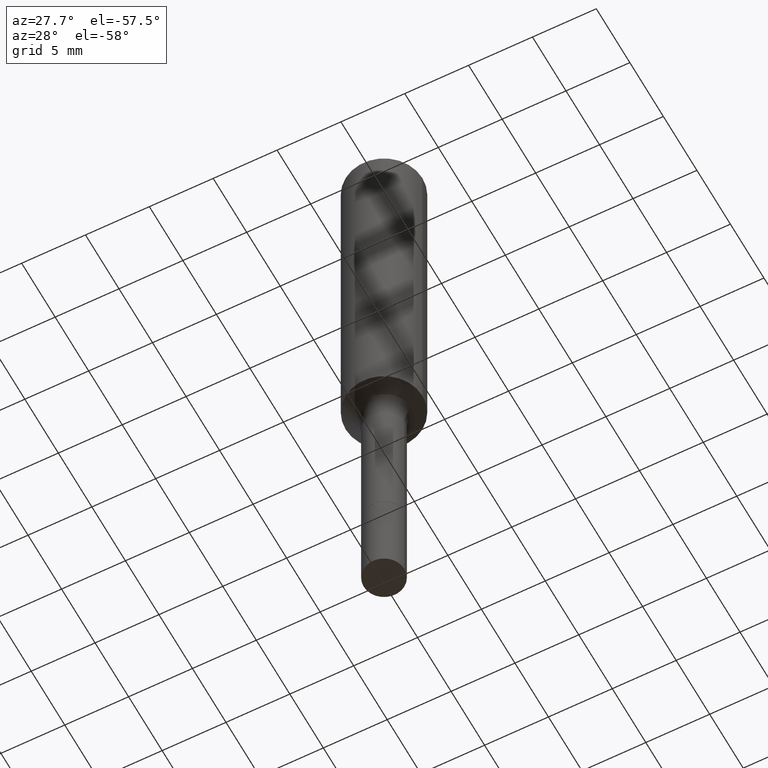
[diagram: clean part render]
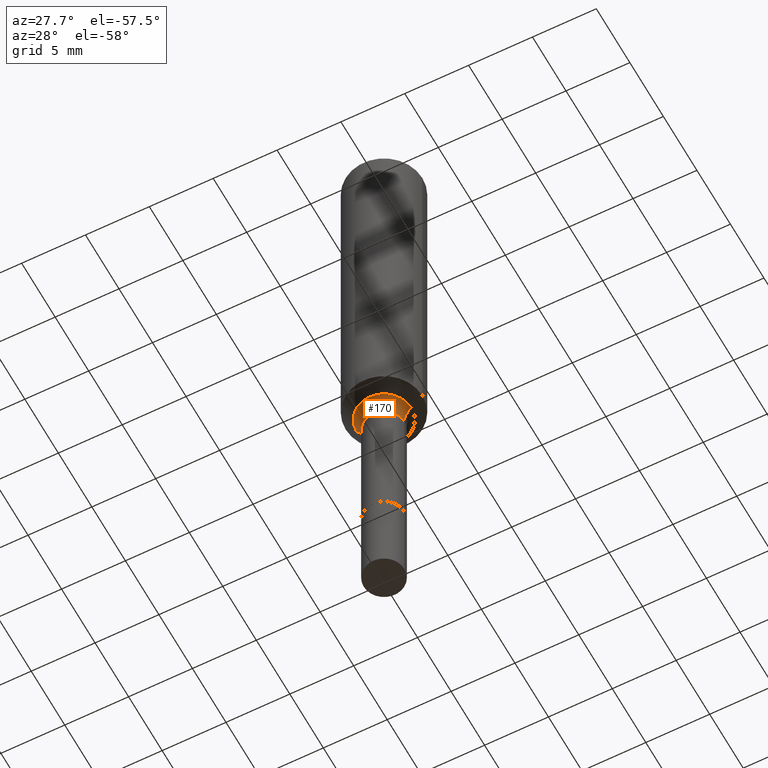
[diagram: same view with one face highlighted and labeled with its STEP entity id]
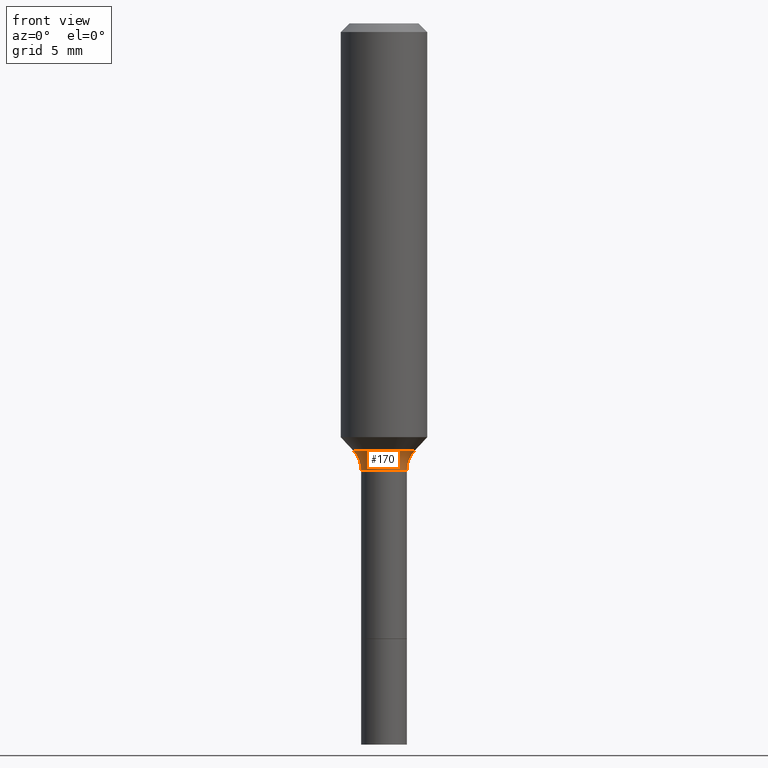
[diagram: same view with one face highlighted and labeled with its STEP entity id]
A machine part, auxiliary view. The second image highlights one B-rep face of the part: STEP entity #170.
A second angle (front view) of the same face is appended — the face is thin or edge-on in the first view.
In plain terms, the highlighted toroidal blend (fillet) surface has major radius 3.6195 mm and minor (blend) radius 2.032 mm.
Its self-contained STEP definition (entity closure, byte-faithful):
#2 = VERTEX_POINT ( 'NONE', #5 ) ;
#5 = CARTESIAN_POINT ( 'NONE',  ( -0.06249999999999993755, -4.617685861137787747E-15, -1.220499999999999918 ) ) ;
#11 = CIRCLE ( 'NONE', #372, 0.07999999999999993228 ) ;
#19 = FACE_OUTER_BOUND ( 'NONE', #62, .T. ) ;
#31 = DIRECTION ( 'NONE',  ( 1.000000000000000000, -6.982962677686268288E-15, 0.000000000000000000 ) ) ;
#32 = VERTEX_POINT ( 'NONE', #206 ) ;
#49 = CARTESIAN_POINT ( 'NONE',  ( -0.1424999999999999600, -3.248829575599916941E-15, -1.220499999999999918 ) ) ;
#51 = CIRCLE ( 'NONE', #109, 0.08399170387046661634 ) ;
#55 = DIRECTION ( 'NONE',  ( 1.000000000000000000, -6.982962677686269866E-15, 0.000000000000000000 ) ) ;
#56 = CIRCLE ( 'NONE', #252, 0.06249999999999993755 ) ;
#62 = EDGE_LOOP ( 'NONE', ( #357, #462, #302, #417 ) ) ;
#107 = VERTEX_POINT ( 'NONE', #363 ) ;
#109 = AXIS2_PLACEMENT_3D ( 'NONE', #352, #156, #31 ) ;
#120 = AXIS2_PLACEMENT_3D ( 'NONE', #49, #497, #490 ) ;
#133 = DIRECTION ( 'NONE',  ( 1.000000000000000000, -6.982962677686269077E-15, 4.883557194083114022E-29 ) ) ;
#138 = DIRECTION ( 'NONE',  ( -2.445468806185136597E-29, 3.491481338843145583E-15, 1.000000000000000000 ) ) ;
#156 = DIRECTION ( 'NONE',  ( -2.445468806185136597E-29, 3.491481338843145583E-15, 1.000000000000000000 ) ) ;
#170 = ADVANCED_FACE ( 'NONE', ( #19 ), #221, .F. ) ;
#206 = CARTESIAN_POINT ( 'NONE',  ( -0.08399170387046649144, -3.474061259782937489E-15, -1.165940131195000173 ) ) ;
#214 = VERTEX_POINT ( 'NONE', #336 ) ;
#221 = TOROIDAL_SURFACE ( 'NONE', #493, 0.1424999999999999600, 0.07999999999999993228 ) ;
#224 = CARTESIAN_POINT ( 'NONE',  ( 0.1424999999999999600, -5.256425155628351561E-15, -1.220499999999999918 ) ) ;
#228 = EDGE_CURVE ( 'NONE', #32, #2, #503, .T. ) ;
#252 = AXIS2_PLACEMENT_3D ( 'NONE', #265, #138, #55 ) ;
#265 = CARTESIAN_POINT ( 'NONE',  ( 2.984694677948959472E-29, -4.261352974058059028E-15, -1.220499999999999918 ) ) ;
#270 = EDGE_CURVE ( 'NONE', #2, #214, #56, .T. ) ;
#300 = DIRECTION ( 'NONE',  ( -2.445468806185136597E-29, 3.491481338843145583E-15, 1.000000000000000000 ) ) ;
#302 = ORIENTED_EDGE ( 'NONE', *, *, #270, .T. ) ;
#336 = CARTESIAN_POINT ( 'NONE',  ( 0.06249999999999993755, -4.697788141413450697E-15, -1.220499999999999918 ) ) ;
#337 = EDGE_CURVE ( 'NONE', #107, #214, #11, .T. ) ;
#351 = EDGE_CURVE ( 'NONE', #32, #107, #51, .T. ) ;
#352 = CARTESIAN_POINT ( 'NONE',  ( 2.851270220716778580E-29, -4.070858210275671756E-15, -1.165940131195000173 ) ) ;
#357 = ORIENTED_EDGE ( 'NONE', *, *, #351, .F. ) ;
#363 = CARTESIAN_POINT ( 'NONE',  ( 0.08399170387046649144, -4.657369143638415371E-15, -1.165940131195000173 ) ) ;
#372 = AXIS2_PLACEMENT_3D ( 'NONE', #224, #418, #421 ) ;
#380 = CARTESIAN_POINT ( 'NONE',  ( 2.984694677948959472E-29, -4.261352974058059028E-15, -1.220499999999999918 ) ) ;
#417 = ORIENTED_EDGE ( 'NONE', *, *, #337, .F. ) ;
#418 = DIRECTION ( 'NONE',  ( -6.982962677686266711E-15, -1.000000000000000000, 3.491481338843145583E-15 ) ) ;
#421 = DIRECTION ( 'NONE',  ( 1.000000000000000000, -6.982962677686265133E-15, 0.000000000000000000 ) ) ;
#462 = ORIENTED_EDGE ( 'NONE', *, *, #228, .T. ) ;
#490 = DIRECTION ( 'NONE',  ( -1.000000000000000000, 7.105427357601005014E-15, 0.000000000000000000 ) ) ;
#493 = AXIS2_PLACEMENT_3D ( 'NONE', #380, #300, #133 ) ;
#497 = DIRECTION ( 'NONE',  ( 7.105427357601001859E-15, 1.000000000000000000, -3.491481338843145583E-15 ) ) ;
#503 = CIRCLE ( 'NONE', #120, 0.07999999999999993228 ) ;